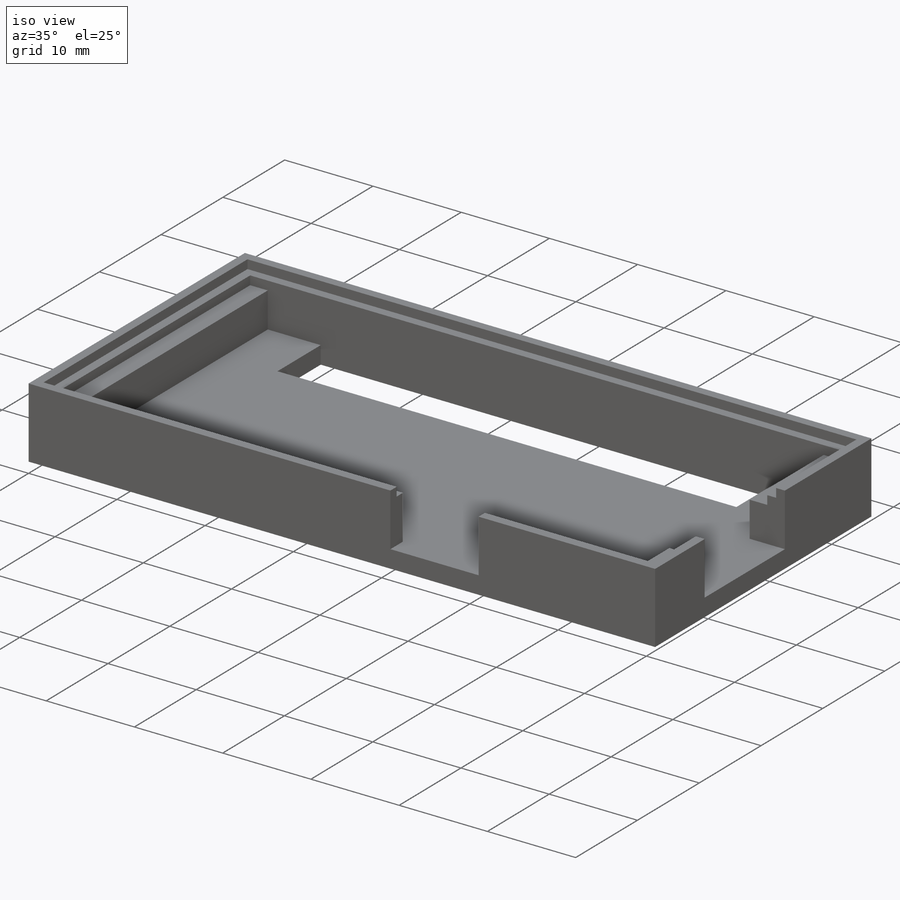
[diagram: iso view]
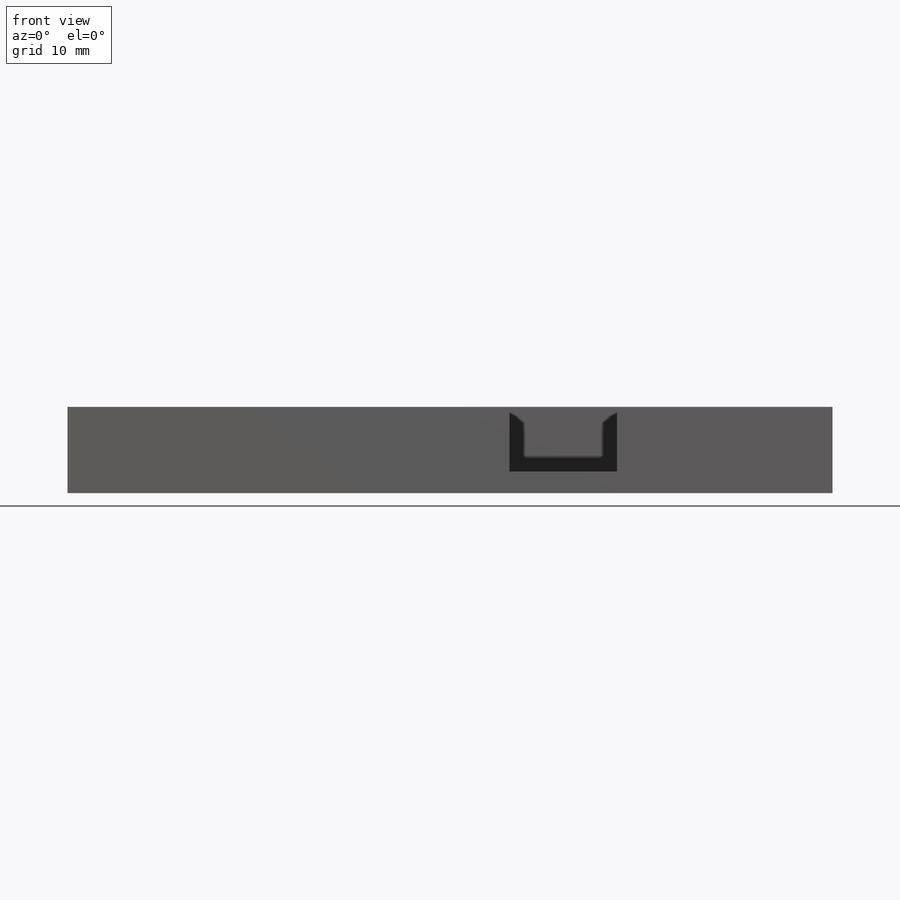
[diagram: front view]
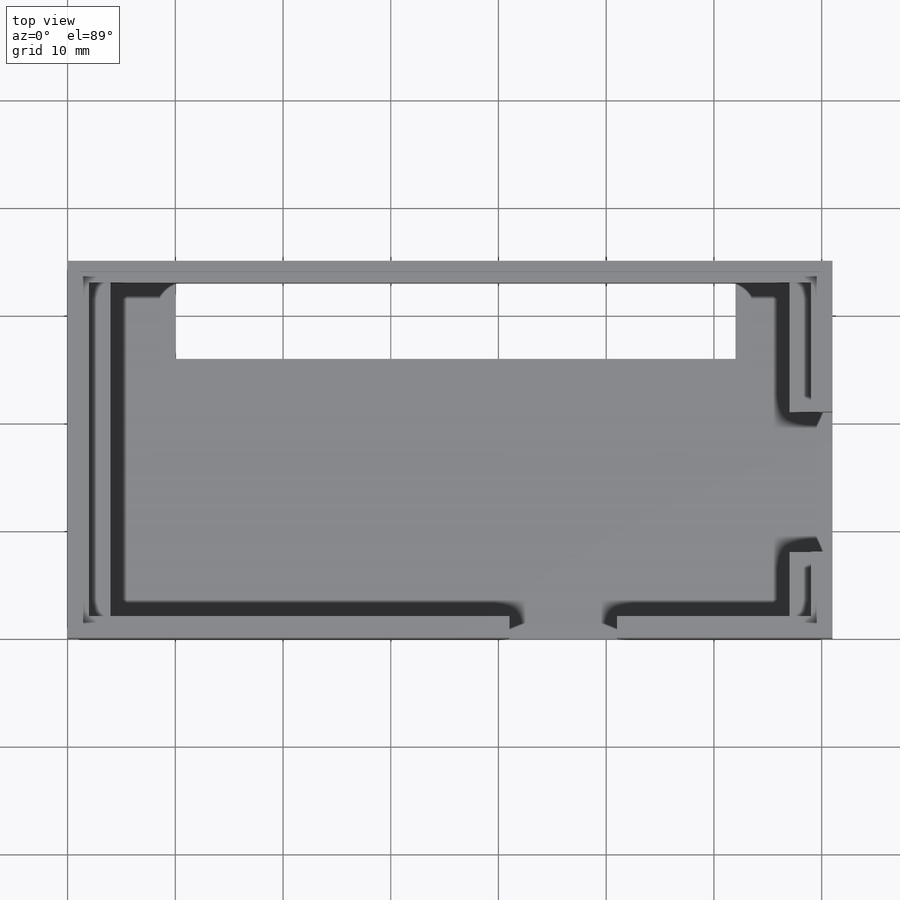
[diagram: top view]
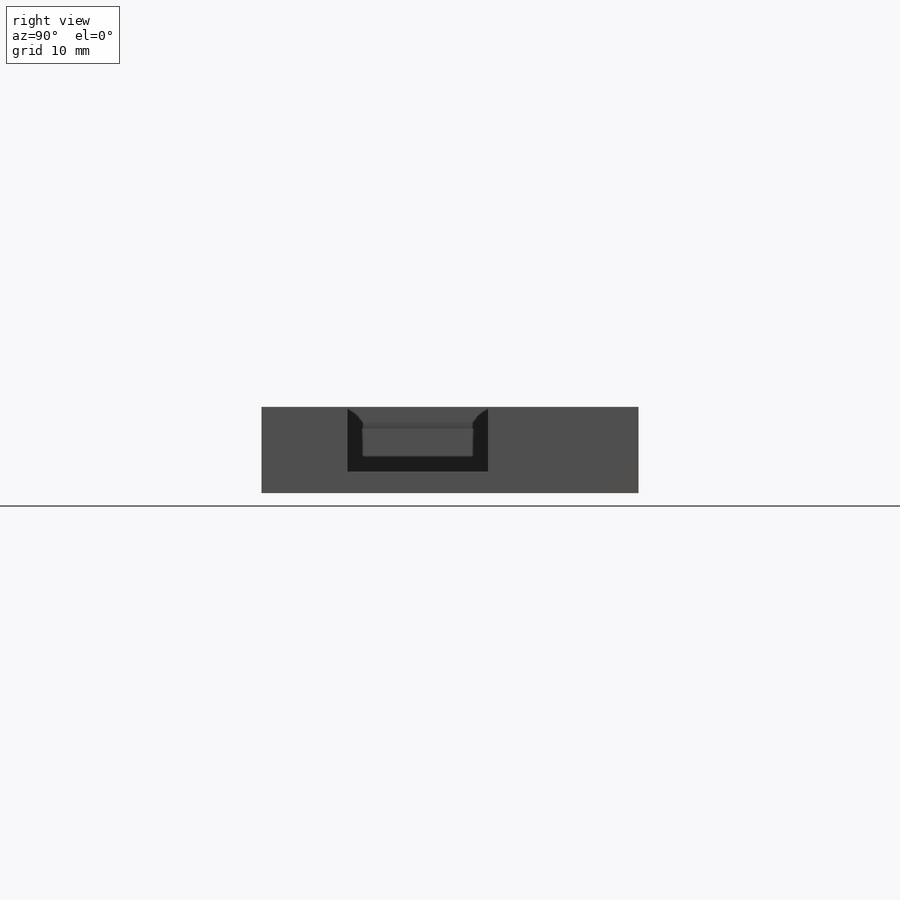
[diagram: right view]
SOLIDWORKS PART (.sldprt)
format: sldprt  version: not decoded by parser v0  size: 247,296 bytes
history: native  units: mm
features: sketch x7, extrude x4, cut_extrude x3, material x1 (+11 scaffold rows collapsed)
feature tree (26):
  scaffold x11  (default folders/planes/origin — collapsed)
  material  "Material <not specified>"
  sketch  "Sketch1"  dims[D1=35.0mm D2=71.0mm]
  extrude  "Boss-Extrude1"  Depth=2mm
  sketch  "Sketch2"  dims[D3=31.0mm D1=0.0mm D2=2.0mm]
  extrude  "Boss-Extrude2"  Depth=5mm
  sketch  "Sketch3"  dims[c1.D1=7.0mm c1.D2=52.0mm c2.D1=7.0mm c2.D3=7.0mm]
  cut_extrude  "Cut-Extrude1"  Depth=5mm
  sketch  "Sketch4"  dims[D1=2.0mm D2=2.0mm D3=12.0mm D4=2.0mm D5=6.0mm]
  extrude  "Boss-Extrude3"  Depth=4mm
  sketch  "Sketch5"
  cut_extrude  "Cut-Extrude2"  Depth=2mm
  sketch  "Sketch6"  dims[D1=18.0mm D2=10.0mm]
  cut_extrude  "Cut-Extrude3"  Depth=2mm
  sketch  "Sketch7"  dims[D1=1.0mm D2=1.0mm]
  extrude  "Boss-Extrude4"  Depth=1mm
decode coverage: 13 of 14 modeling features carry decoded parameters
note: suppression state not decoded; provenance and decode notes live in map.json
